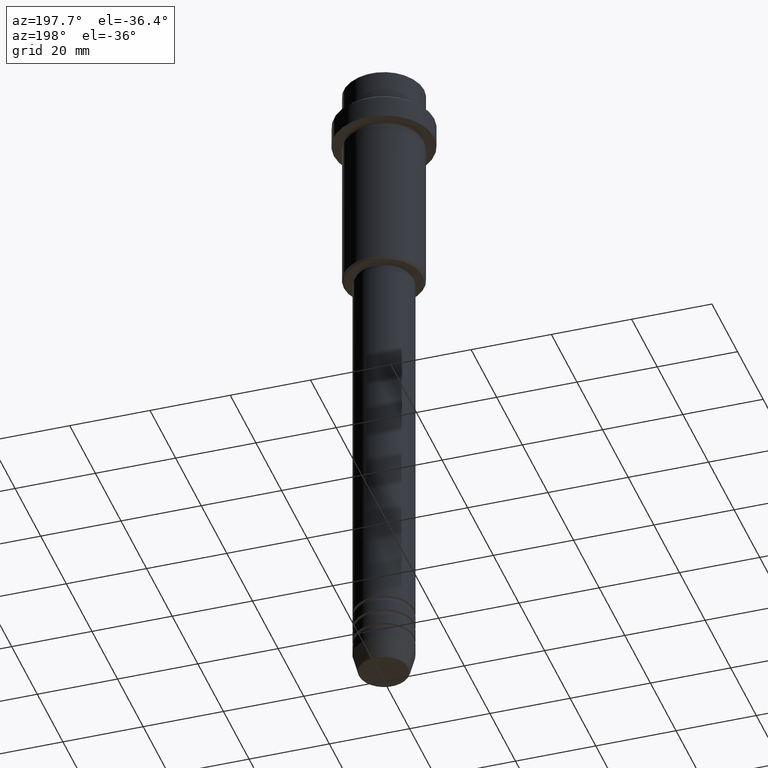
[diagram: clean part render]
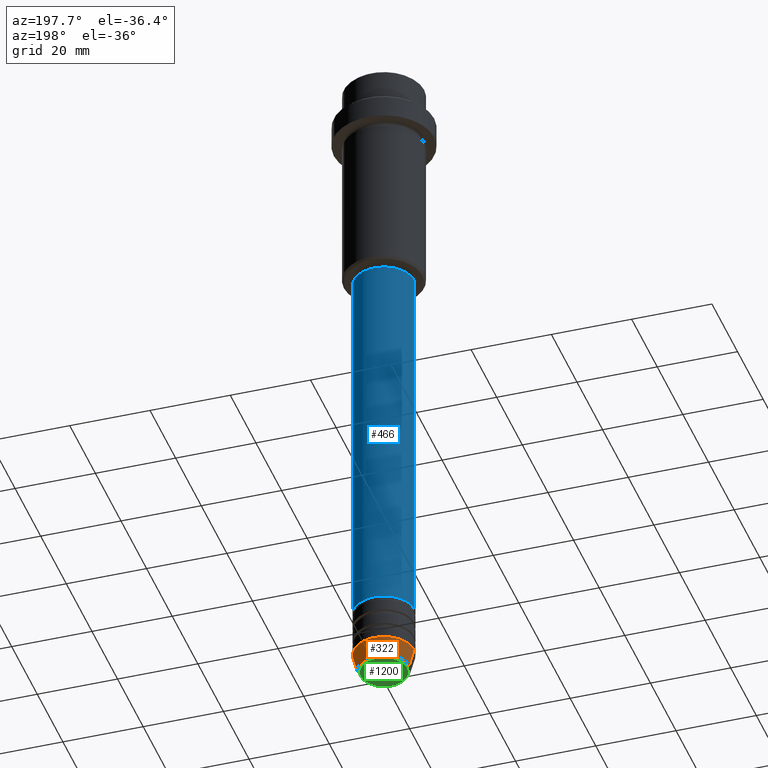
[diagram: same view with three faces highlighted in distinct colors, each labeled with its STEP entity id]
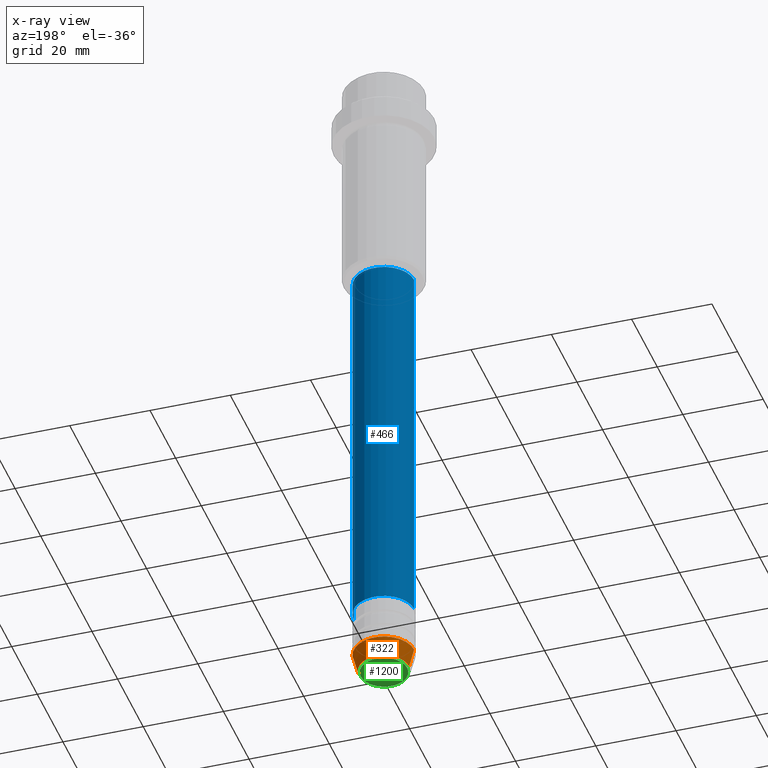
[diagram: x-ray of the same camera — body ghosted, the three highlighted faces saturated]
A machine part, auxiliary view with three faces highlighted in distinct colors.
The next image is the same camera in x-ray (body ghosted, the three faces saturated) — at least one of them is partly hidden behind the body in this view.
Their STEP definitions:

[orange] entity #322 — the highlighted conical surface has half-angle 15 deg.
#15 = ORIENTED_EDGE ( 'NONE', *, *, #1236, .F. ) ;
#39 = DIRECTION ( 'NONE',  ( -0.000000000000000000, -0.000000000000000000, 1.000000000000000000 ) ) ;
#49 = CARTESIAN_POINT ( 'NONE',  ( 7.500000000000000000, 0.000000000000000000, -164.9999999999999716 ) ) ;
#72 = FACE_OUTER_BOUND ( 'NONE', #585, .T. ) ;
#73 = CARTESIAN_POINT ( 'NONE',  ( -6.259553456999438659, 8.425296549405629486E-16, -169.6294095225512422 ) ) ;
#84 = VERTEX_POINT ( 'NONE', #955 ) ;
#168 = VECTOR ( 'NONE', #720, 1000.000000000000000 ) ;
#205 = LINE ( 'NONE', #549, #168 ) ;
#290 = DIRECTION ( 'NONE',  ( -0.000000000000000000, -0.000000000000000000, 1.000000000000000000 ) ) ;
#322 = ADVANCED_FACE ( 'NONE', ( #72 ), #1288, .T. ) ;
#331 = EDGE_CURVE ( 'NONE', #734, #881, #205, .T. ) ;
#377 = CARTESIAN_POINT ( 'NONE',  ( 7.500000000000000000, 0.000000000000000000, -164.9999999999999716 ) ) ;
#381 = DIRECTION ( 'NONE',  ( 1.000000000000000000, 0.000000000000000000, 0.000000000000000000 ) ) ;
#410 = VECTOR ( 'NONE', #1260, 1000.000000000000000 ) ;
#439 = ORIENTED_EDGE ( 'NONE', *, *, #993, .T. ) ;
#504 = DIRECTION ( 'NONE',  ( -0.000000000000000000, -0.000000000000000000, 1.000000000000000000 ) ) ;
#549 = CARTESIAN_POINT ( 'NONE',  ( -7.500000000000000000, 9.184850993605147944E-16, -164.9999999999999716 ) ) ;
#572 = DIRECTION ( 'NONE',  ( 1.000000000000000000, 0.000000000000000000, 0.000000000000000000 ) ) ;
#585 = EDGE_LOOP ( 'NONE', ( #439, #1149, #772, #15 ) ) ;
#689 = CIRCLE ( 'NONE', #1207, 7.500000000000000000 ) ;
#695 = LINE ( 'NONE', #377, #410 ) ;
#720 = DIRECTION ( 'NONE',  ( -0.2588190451025213501, 3.169619151431772337E-17, 0.9659258262890680902 ) ) ;
#732 = DIRECTION ( 'NONE',  ( 1.000000000000000000, 0.000000000000000000, 0.000000000000000000 ) ) ;
#734 = VERTEX_POINT ( 'NONE', #73 ) ;
#772 = ORIENTED_EDGE ( 'NONE', *, *, #823, .F. ) ;
#776 = CARTESIAN_POINT ( 'NONE',  ( 0.000000000000000000, 0.000000000000000000, -169.6294095225512422 ) ) ;
#791 = AXIS2_PLACEMENT_3D ( 'NONE', #776, #39, #572 ) ;
#823 = EDGE_CURVE ( 'NONE', #1284, #881, #689, .T. ) ;
#854 = CARTESIAN_POINT ( 'NONE',  ( 0.000000000000000000, 0.000000000000000000, -164.9999999999999716 ) ) ;
#881 = VERTEX_POINT ( 'NONE', #1287 ) ;
#955 = CARTESIAN_POINT ( 'NONE',  ( 6.259553456999438659, 0.000000000000000000, -169.6294095225512422 ) ) ;
#993 = EDGE_CURVE ( 'NONE', #84, #734, #1361, .T. ) ;
#1149 = ORIENTED_EDGE ( 'NONE', *, *, #331, .T. ) ;
#1180 = CARTESIAN_POINT ( 'NONE',  ( 0.000000000000000000, 0.000000000000000000, -164.9999999999999716 ) ) ;
#1207 = AXIS2_PLACEMENT_3D ( 'NONE', #1180, #290, #381 ) ;
#1226 = AXIS2_PLACEMENT_3D ( 'NONE', #854, #504, #732 ) ;
#1236 = EDGE_CURVE ( 'NONE', #84, #1284, #695, .T. ) ;
#1260 = DIRECTION ( 'NONE',  ( 0.2588190451025213501, 0.000000000000000000, 0.9659258262890680902 ) ) ;
#1284 = VERTEX_POINT ( 'NONE', #49 ) ;
#1287 = CARTESIAN_POINT ( 'NONE',  ( -7.500000000000000000, 9.184850993605147944E-16, -164.9999999999999716 ) ) ;
#1288 = CONICAL_SURFACE ( 'NONE', #1226, 7.500000000000000000, 0.2617993877991500740 ) ;
#1361 = CIRCLE ( 'NONE', #791, 6.259553456999438659 ) ;

[blue] entity #466 — the highlighted cylindrical surface (edge-blend (fillet) strip) has radius 7.5 mm, axis along (-0, -0, 1).
#11 = VECTOR ( 'NONE', #509, 1000.000000000000000 ) ;
#44 = DIRECTION ( 'NONE',  ( 1.000000000000000000, 0.000000000000000000, 0.000000000000000000 ) ) ;
#48 = CARTESIAN_POINT ( 'NONE',  ( 7.500000000000000000, 0.000000000000000000, -152.9999999999998579 ) ) ;
#86 = CARTESIAN_POINT ( 'NONE',  ( -7.500000000000000000, 9.184850993605147944E-16, 0.000000000000000000 ) ) ;
#104 = CARTESIAN_POINT ( 'NONE',  ( 0.000000000000000000, 0.000000000000000000, -55.99999999999998579 ) ) ;
#109 = EDGE_CURVE ( 'NONE', #822, #1231, #1069, .T. ) ;
#122 = AXIS2_PLACEMENT_3D ( 'NONE', #1304, #1410, #635 ) ;
#149 = DIRECTION ( 'NONE',  ( -0.000000000000000000, -0.000000000000000000, 1.000000000000000000 ) ) ;
#166 = ORIENTED_EDGE ( 'NONE', *, *, #1093, .T. ) ;
#213 = EDGE_CURVE ( 'NONE', #334, #690, #746, .T. ) ;
#240 = CARTESIAN_POINT ( 'NONE',  ( 7.500000000000000000, 0.000000000000000000, -55.99999999999998579 ) ) ;
#283 = CARTESIAN_POINT ( 'NONE',  ( 7.500000000000000000, 0.000000000000000000, 0.000000000000000000 ) ) ;
#285 = ORIENTED_EDGE ( 'NONE', *, *, #213, .F. ) ;
#334 = VERTEX_POINT ( 'NONE', #48 ) ;
#342 = ORIENTED_EDGE ( 'NONE', *, *, #109, .T. ) ;
#349 = ORIENTED_EDGE ( 'NONE', *, *, #1285, .F. ) ;
#408 = VECTOR ( 'NONE', #748, 1000.000000000000000 ) ;
#466 = ADVANCED_FACE ( 'NONE', ( #541 ), #862, .T. ) ;
#480 = CIRCLE ( 'NONE', #1382, 7.500000000000000000 ) ;
#506 = CARTESIAN_POINT ( 'NONE',  ( -7.500000000000000000, 9.184850993605147944E-16, -55.99999999999998579 ) ) ;
#509 = DIRECTION ( 'NONE',  ( -0.000000000000000000, -0.000000000000000000, 1.000000000000000000 ) ) ;
#525 = AXIS2_PLACEMENT_3D ( 'NONE', #670, #149, #44 ) ;
#533 = EDGE_LOOP ( 'NONE', ( #166, #342, #349, #285 ) ) ;
#541 = FACE_OUTER_BOUND ( 'NONE', #533, .T. ) ;
#635 = DIRECTION ( 'NONE',  ( 1.000000000000000000, 0.000000000000000000, 0.000000000000000000 ) ) ;
#670 = CARTESIAN_POINT ( 'NONE',  ( 0.000000000000000000, 0.000000000000000000, -152.9999999999998579 ) ) ;
#690 = VERTEX_POINT ( 'NONE', #240 ) ;
#741 = DIRECTION ( 'NONE',  ( -0.000000000000000000, -0.000000000000000000, 1.000000000000000000 ) ) ;
#746 = LINE ( 'NONE', #283, #408 ) ;
#748 = DIRECTION ( 'NONE',  ( -0.000000000000000000, -0.000000000000000000, 1.000000000000000000 ) ) ;
#822 = VERTEX_POINT ( 'NONE', #944 ) ;
#862 = CYLINDRICAL_SURFACE ( 'NONE', #122, 7.500000000000000000 ) ;
#944 = CARTESIAN_POINT ( 'NONE',  ( -7.500000000000000000, 9.184850993605147944E-16, -152.9999999999998579 ) ) ;
#1069 = LINE ( 'NONE', #86, #11 ) ;
#1093 = EDGE_CURVE ( 'NONE', #334, #822, #1161, .T. ) ;
#1161 = CIRCLE ( 'NONE', #525, 7.500000000000000000 ) ;
#1199 = DIRECTION ( 'NONE',  ( 1.000000000000000000, 0.000000000000000000, 0.000000000000000000 ) ) ;
#1231 = VERTEX_POINT ( 'NONE', #506 ) ;
#1285 = EDGE_CURVE ( 'NONE', #690, #1231, #480, .T. ) ;
#1304 = CARTESIAN_POINT ( 'NONE',  ( 0.000000000000000000, 0.000000000000000000, 0.000000000000000000 ) ) ;
#1382 = AXIS2_PLACEMENT_3D ( 'NONE', #104, #741, #1199 ) ;
#1410 = DIRECTION ( 'NONE',  ( -0.000000000000000000, -0.000000000000000000, 1.000000000000000000 ) ) ;

[green] entity #1200 — the highlighted planar face has unit normal (0, -0, 1).
#71 = CARTESIAN_POINT ( 'NONE',  ( 0.000000000000000000, 0.000000000000000000, -169.9999999999999716 ) ) ;
#113 = VERTEX_POINT ( 'NONE', #516 ) ;
#163 = VERTEX_POINT ( 'NONE', #1241 ) ;
#178 = DIRECTION ( 'NONE',  ( 0.000000000000000000, -0.000000000000000000, 1.000000000000000000 ) ) ;
#189 = AXIS2_PLACEMENT_3D ( 'NONE', #1092, #649, #899 ) ;
#235 = CIRCLE ( 'NONE', #817, 5.776590543854905668 ) ;
#384 = CARTESIAN_POINT ( 'NONE',  ( 0.000000000000000000, 0.000000000000000000, -169.9999999999999716 ) ) ;
#495 = FACE_OUTER_BOUND ( 'NONE', #946, .T. ) ;
#516 = CARTESIAN_POINT ( 'NONE',  ( -5.776590543854905668, 7.370012612361447573E-16, -169.9999999999999716 ) ) ;
#649 = DIRECTION ( 'NONE',  ( 0.000000000000000000, 0.000000000000000000, -1.000000000000000000 ) ) ;
#702 = DIRECTION ( 'NONE',  ( 1.000000000000000000, 0.000000000000000000, 0.000000000000000000 ) ) ;
#725 = DIRECTION ( 'NONE',  ( 1.000000000000000000, 0.000000000000000000, 0.000000000000000000 ) ) ;
#786 = AXIS2_PLACEMENT_3D ( 'NONE', #384, #178, #725 ) ;
#814 = CIRCLE ( 'NONE', #189, 5.776590543854905668 ) ;
#817 = AXIS2_PLACEMENT_3D ( 'NONE', #71, #1043, #702 ) ;
#872 = EDGE_CURVE ( 'NONE', #163, #113, #814, .T. ) ;
#899 = DIRECTION ( 'NONE',  ( 1.000000000000000000, 0.000000000000000000, 0.000000000000000000 ) ) ;
#946 = EDGE_LOOP ( 'NONE', ( #1221, #1273 ) ) ;
#1043 = DIRECTION ( 'NONE',  ( 0.000000000000000000, 0.000000000000000000, -1.000000000000000000 ) ) ;
#1092 = CARTESIAN_POINT ( 'NONE',  ( 0.000000000000000000, 0.000000000000000000, -169.9999999999999716 ) ) ;
#1155 = EDGE_CURVE ( 'NONE', #113, #163, #235, .T. ) ;
#1200 = ADVANCED_FACE ( 'NONE', ( #495 ), #1276, .F. ) ;
#1221 = ORIENTED_EDGE ( 'NONE', *, *, #872, .T. ) ;
#1241 = CARTESIAN_POINT ( 'NONE',  ( 5.776590543854905668, 0.000000000000000000, -169.9999999999999716 ) ) ;
#1273 = ORIENTED_EDGE ( 'NONE', *, *, #1155, .T. ) ;
#1276 = PLANE ( 'NONE',  #786 ) ;